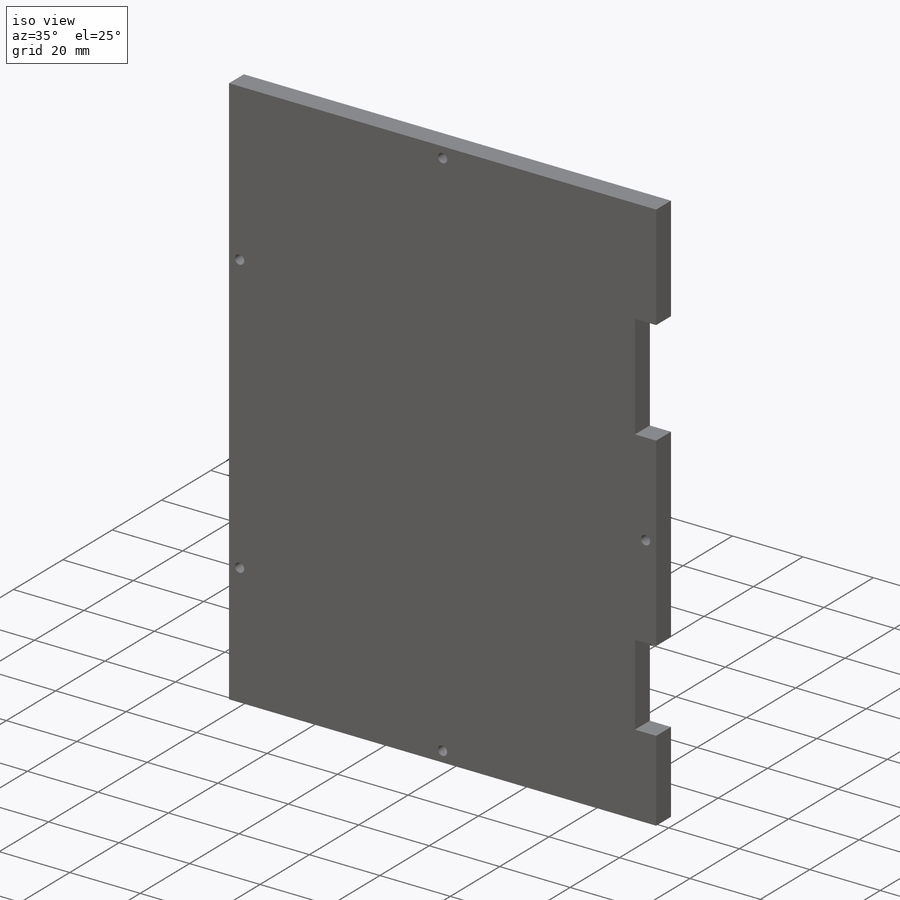
[diagram: iso view]
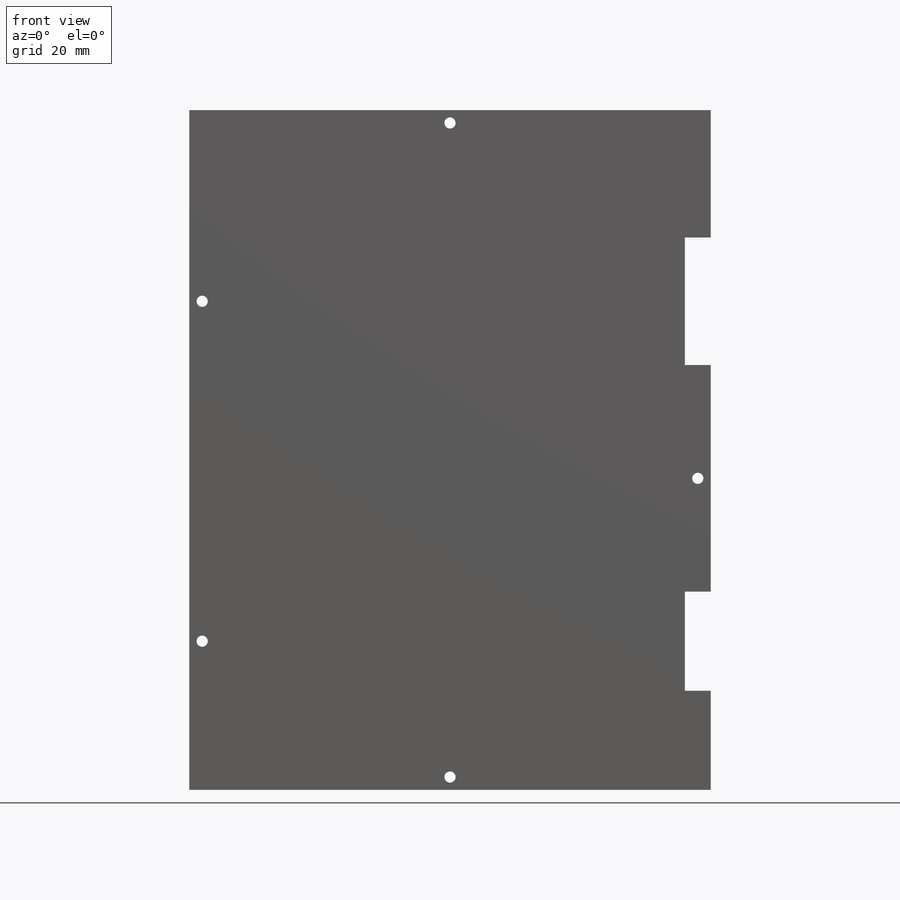
[diagram: front view]
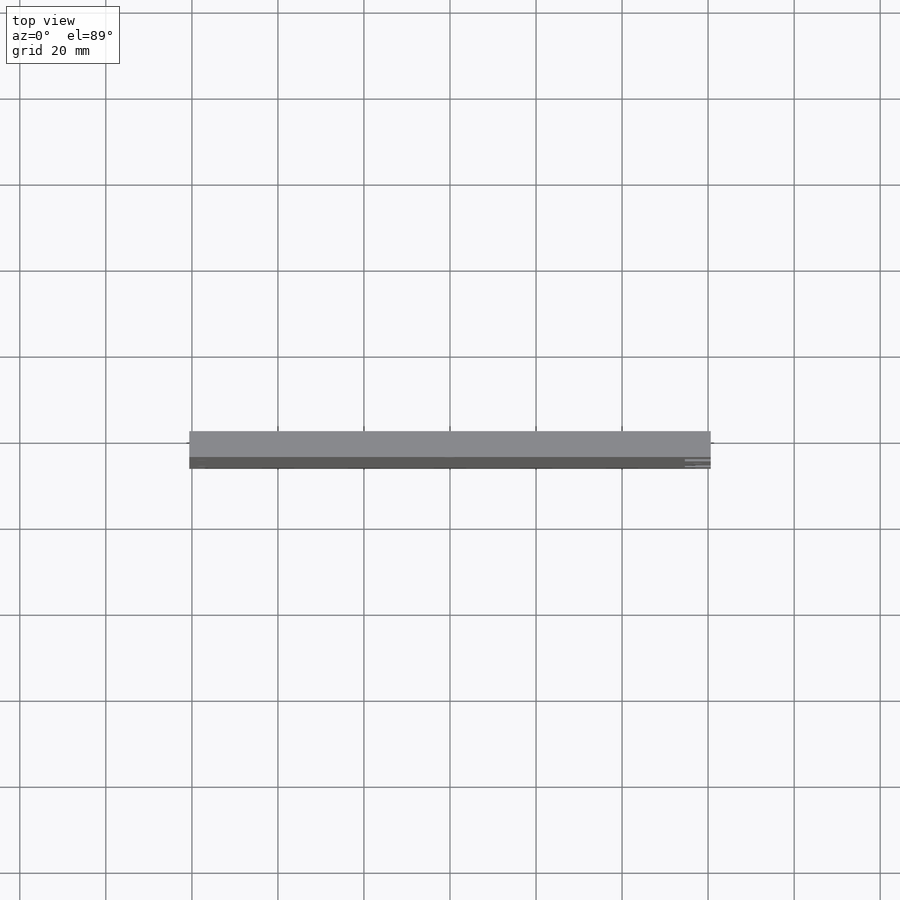
[diagram: top view]
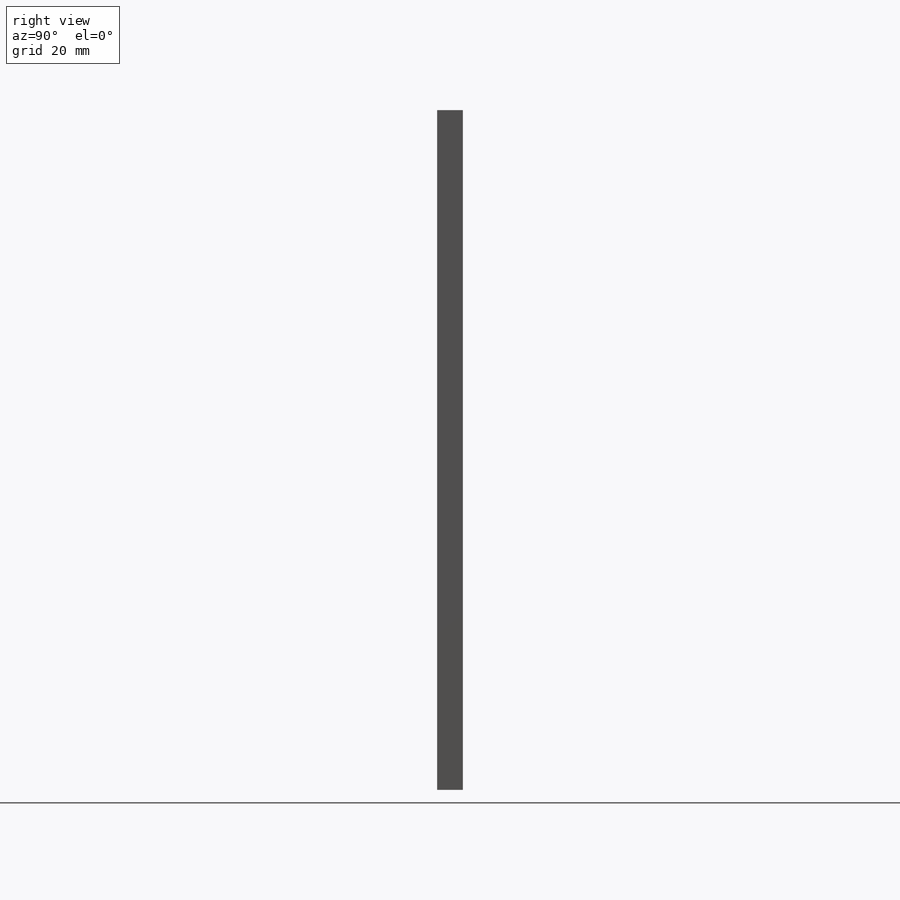
[diagram: right view]
SOLIDWORKS PART (.sldprt)
format: sldprt  version: not decoded by parser v0  size: 354,304 bytes
history: native  units: mm
features: sketch x6, cut_extrude x5, material x1, extrude x1 (+12 scaffold rows collapsed; 1 parser-record rows omitted)
feature tree (26):
  scaffold x12  (default folders/planes/origin — collapsed)
  material  "ABS PC"
  sketch  "Sketch1"  dims[D1=120.8024mm D2=166.5224mm]
  extrude  "Boss-Extrude1"  Depth=5.7912mm
  parser-record x1  (decoder bookkeeping rows leaked as tree rows — omitted from the tree; the rows remain in map.json)
  sketch  "Sketch7"  dims[c1.D2=2.54mm c1.D3=~5.653821mm c1.D4=2.6035mm c2.D2=2.6035mm c2.D1=3.175mm c2.D3=2.54mm c3.D1=41.275mm c3.D3=2.8956mm c3.D5=41.9862mm]
  cut_extrude  "Cut-Extrude6"  [1 undecoded]
  sketch  "Sketch9"  dims[D1=5.7912mm D2=27.9908mm D3=27.9908mm]
  cut_extrude  "Cut-Extrude7"  [1 undecoded]
  sketch  "Sketch10"  dims[D1=5.7912mm D2=~27.516667mm D3=~27.516667mm]
  cut_extrude  "Cut-Extrude8"  [1 undecoded]
  sketch  "Sketch11"  dims[D1=2.6035mm]
  cut_extrude  "Cut-Extrude9"  [1 undecoded]
  sketch  "Sketch12"  dims[D1=2.6035mm D3=2.6035mm D5=5.9944mm D2=2.8956mm D4=2.8956mm]
  cut_extrude  "Cut-Extrude10"  [1 undecoded]
decode coverage: 7 of 12 modeling features carry decoded parameters
note: ~ marks probable driven/reference dimensions
note: 5 parameter values undecoded
summary: no parameter record found for 5 features
note: suppression state not decoded; provenance and decode notes live in map.json
